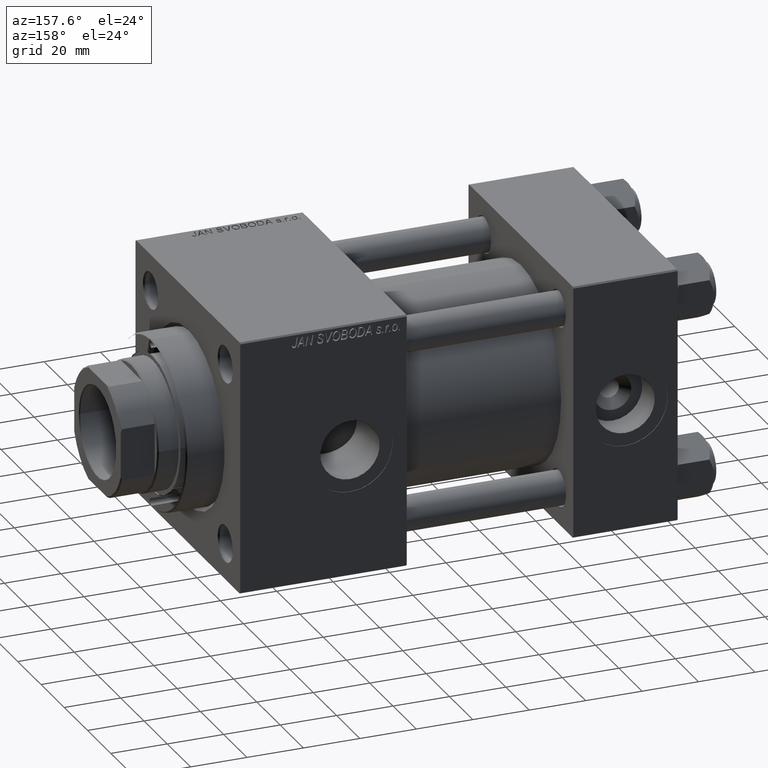
[diagram: clean part render]
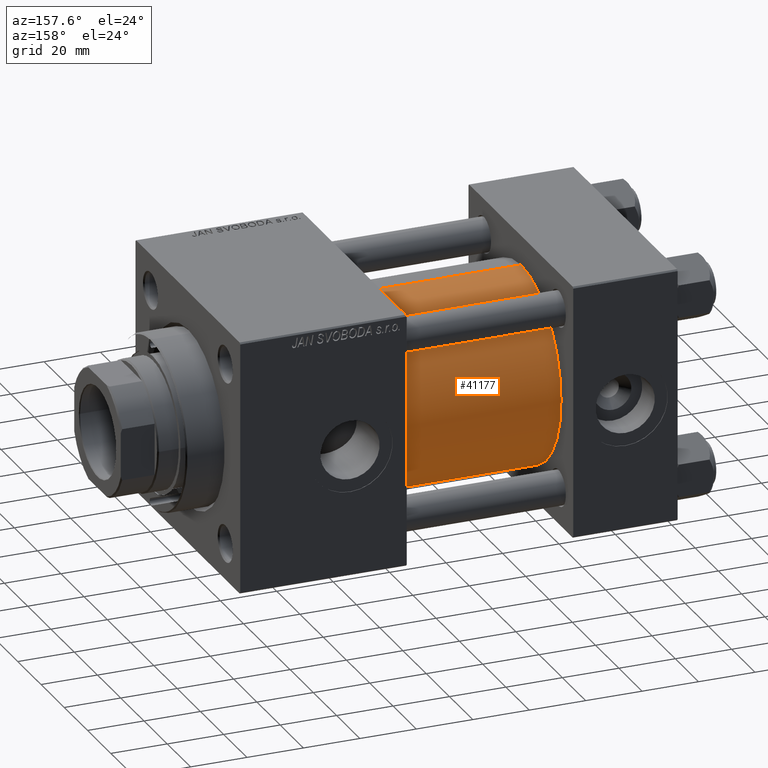
[diagram: same view with one face highlighted and labeled with its STEP entity id]
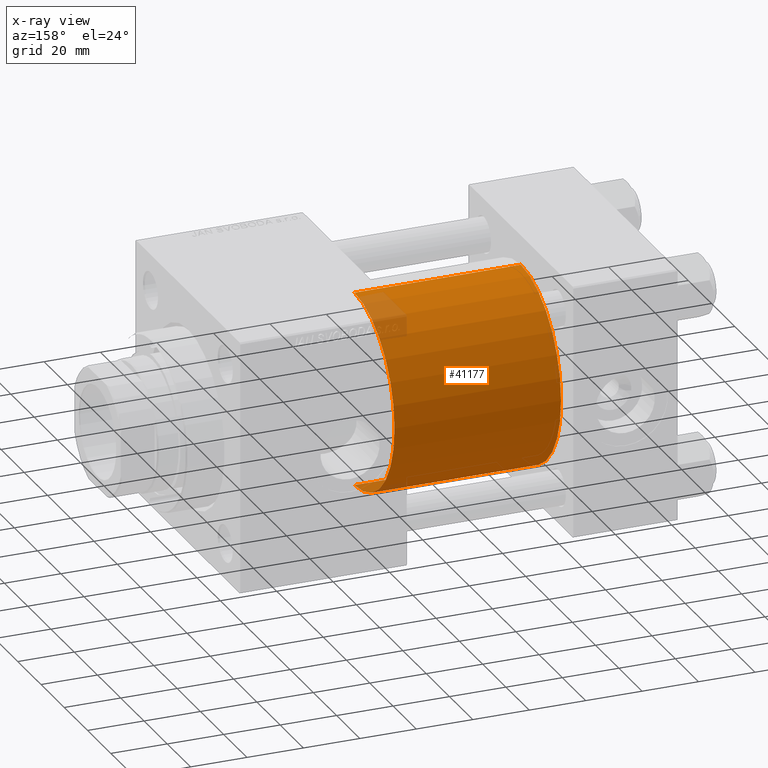
[diagram: x-ray of the same camera — body ghosted, the highlighted face saturated]
A machine part, auxiliary view. The second image highlights one B-rep face of the part: STEP entity #41177.
The next image is the same camera in x-ray: the body ghosted, the highlighted face saturated — about 5% of this face is hidden behind the body in this view.
In plain terms, the highlighted cylindrical surface (partial cylindrical patch) has radius 34.5 mm, axis along (-1, -0, -0).
Its self-contained STEP definition (entity closure, byte-faithful):
#1047 = VERTEX_POINT ( 'NONE', #10953 ) ;
#1339 = AXIS2_PLACEMENT_3D ( 'NONE', #2589, #18349, #29530 ) ;
#1599 = DIRECTION ( 'NONE',  ( -1.000000000000000000, -0.000000000000000000, -0.000000000000000000 ) ) ;
#2589 = CARTESIAN_POINT ( 'NONE',  ( 96.00000000000000000, -2.602085213965210642E-15, 0.000000000000000000 ) ) ;
#3193 = VERTEX_POINT ( 'NONE', #44156 ) ;
#4089 = CARTESIAN_POINT ( 'NONE',  ( 96.00000000000000000, -2.602085213965210642E-15, 0.000000000000000000 ) ) ;
#4852 = ORIENTED_EDGE ( 'NONE', *, *, #20206, .T. ) ;
#5199 = CARTESIAN_POINT ( 'NONE',  ( 37.00000000000000000, -2.602085213965210642E-15, 0.000000000000000000 ) ) ;
#8257 = CARTESIAN_POINT ( 'NONE',  ( 37.00000000000000000, -2.602085213965210642E-15, 34.50000000000000000 ) ) ;
#9875 = VERTEX_POINT ( 'NONE', #8257 ) ;
#9917 = ORIENTED_EDGE ( 'NONE', *, *, #35364, .T. ) ;
#10206 = EDGE_CURVE ( 'NONE', #1047, #11047, #32195, .T. ) ;
#10953 = CARTESIAN_POINT ( 'NONE',  ( 96.00000000000000000, 1.622946243093158675E-15, -34.50000000000000000 ) ) ;
#11047 = VERTEX_POINT ( 'NONE', #17715 ) ;
#11707 = CYLINDRICAL_SURFACE ( 'NONE', #33942, 34.50000000000000000 ) ;
#11978 = CARTESIAN_POINT ( 'NONE',  ( 96.00000000000000000, -2.602085213965210642E-15, 34.50000000000000000 ) ) ;
#12468 = VECTOR ( 'NONE', #1599, 1000.000000000000000 ) ;
#13090 = DIRECTION ( 'NONE',  ( 0.000000000000000000, 0.000000000000000000, 1.000000000000000000 ) ) ;
#15787 = EDGE_CURVE ( 'NONE', #11047, #9875, #46854, .T. ) ;
#16150 = CIRCLE ( 'NONE', #47047, 34.50000000000000000 ) ;
#17246 = ORIENTED_EDGE ( 'NONE', *, *, #10206, .F. ) ;
#17715 = CARTESIAN_POINT ( 'NONE',  ( 96.00000000000000000, -2.602085213965210642E-15, 34.50000000000000000 ) ) ;
#18349 = DIRECTION ( 'NONE',  ( 1.000000000000000000, 0.000000000000000000, 0.000000000000000000 ) ) ;
#20206 = EDGE_CURVE ( 'NONE', #3193, #9875, #16150, .T. ) ;
#22412 = DIRECTION ( 'NONE',  ( -1.000000000000000000, -0.000000000000000000, -0.000000000000000000 ) ) ;
#22909 = FACE_OUTER_BOUND ( 'NONE', #25076, .T. ) ;
#25076 = EDGE_LOOP ( 'NONE', ( #17246, #9917, #4852, #48801 ) ) ;
#26723 = DIRECTION ( 'NONE',  ( 0.000000000000000000, 0.000000000000000000, 1.000000000000000000 ) ) ;
#27491 = DIRECTION ( 'NONE',  ( -1.000000000000000000, -0.000000000000000000, -0.000000000000000000 ) ) ;
#29530 = DIRECTION ( 'NONE',  ( 0.000000000000000000, 0.000000000000000000, -1.000000000000000000 ) ) ;
#32195 = CIRCLE ( 'NONE', #1339, 34.50000000000000000 ) ;
#33942 = AXIS2_PLACEMENT_3D ( 'NONE', #4089, #22412, #26723 ) ;
#35364 = EDGE_CURVE ( 'NONE', #1047, #3193, #36443, .T. ) ;
#35489 = DIRECTION ( 'NONE',  ( 1.000000000000000000, -0.000000000000000000, 0.000000000000000000 ) ) ;
#35556 = VECTOR ( 'NONE', #27491, 1000.000000000000000 ) ;
#36443 = LINE ( 'NONE', #36691, #12468 ) ;
#36691 = CARTESIAN_POINT ( 'NONE',  ( 96.00000000000000000, 1.622946243093158675E-15, -34.50000000000000000 ) ) ;
#41177 = ADVANCED_FACE ( 'NONE', ( #22909 ), #11707, .T. ) ;
#44156 = CARTESIAN_POINT ( 'NONE',  ( 37.00000000000000000, 1.622946243093158675E-15, -34.50000000000000000 ) ) ;
#46854 = LINE ( 'NONE', #11978, #35556 ) ;
#47047 = AXIS2_PLACEMENT_3D ( 'NONE', #5199, #35489, #13090 ) ;
#48801 = ORIENTED_EDGE ( 'NONE', *, *, #15787, .F. ) ;